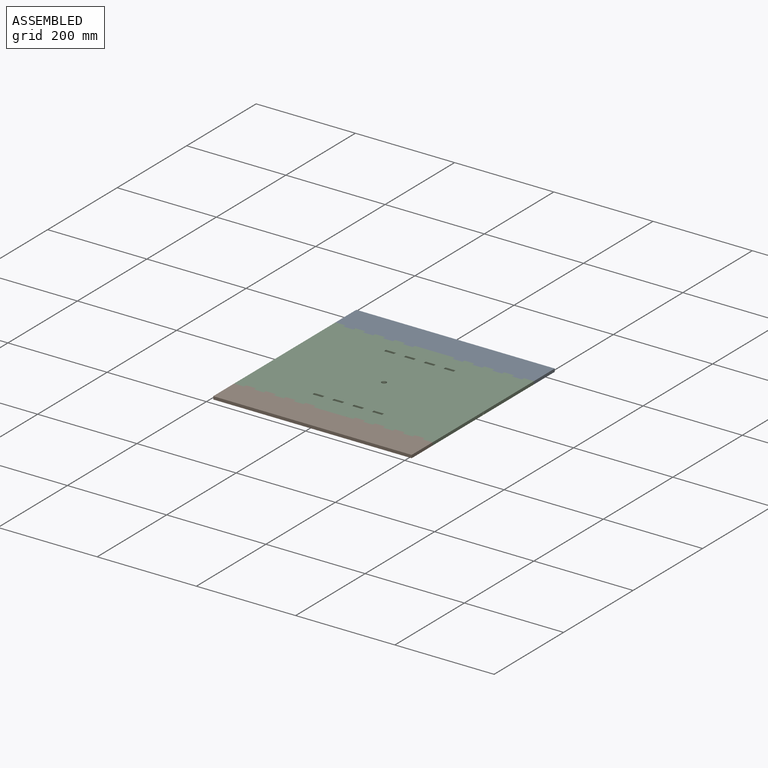
[diagram: assembled view]
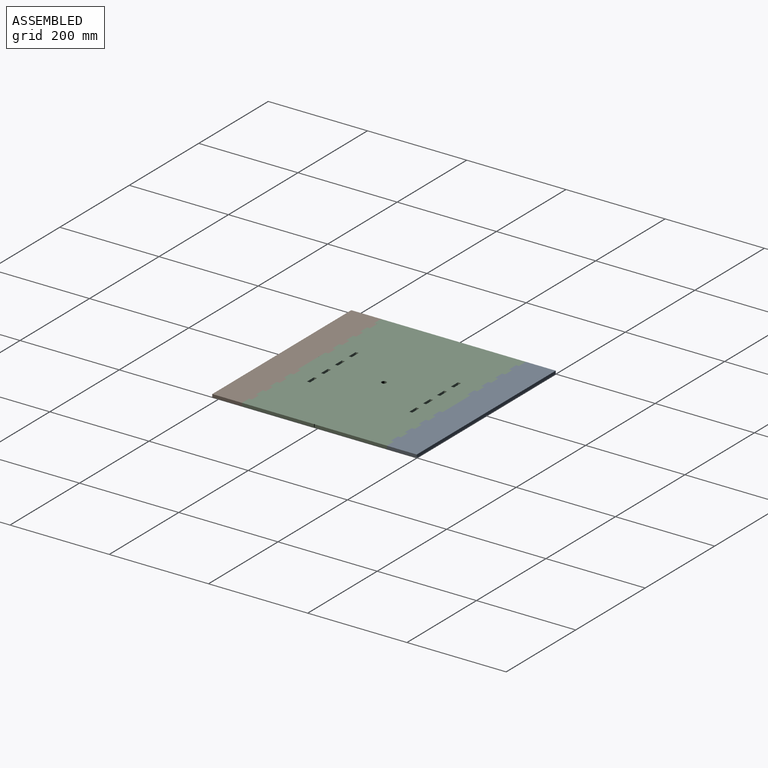
[diagram: assembled view, second angle]
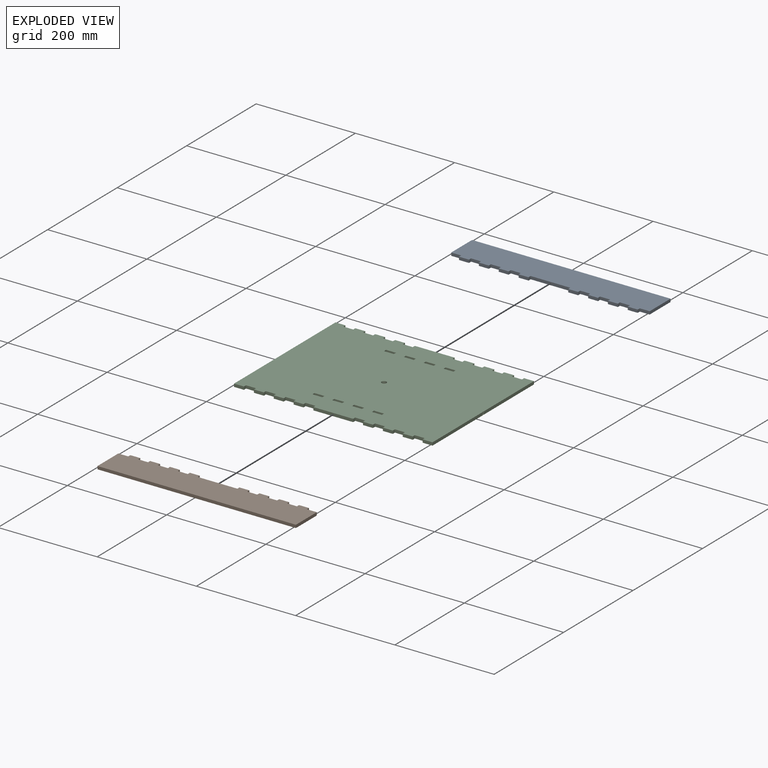
[diagram: exploded view]
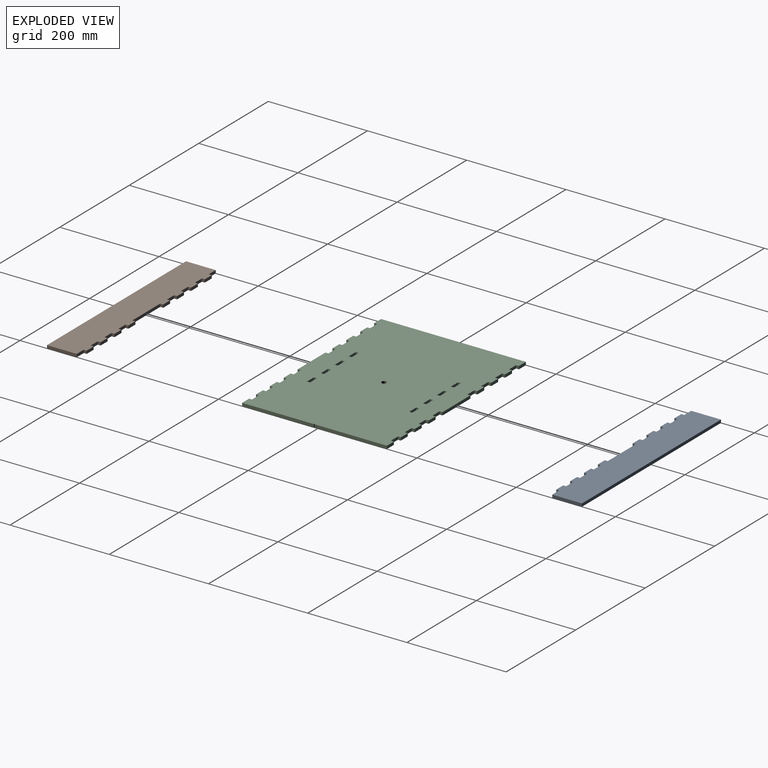
[diagram: exploded view, second angle]
ASSEMBLY  parts=3 mates=2
PART A: 38 faces, bbox 400x6x66 mm
  f0: plane 20x6mm, normal (0,0,1), area 120mm2, adj f1,f35,f36,f37
  f1: plane 6x6mm, normal (1,0,0), area 36mm2, adj f0,f2,f36,f37
  f2: plane 20x6mm, normal (0,0,1), area 120mm2, adj f1,f3,f36,f37
  f3: plane 6x6mm, normal (-1,0,0), area 36mm2, adj f2,f4,f36,f37
  f4: plane 20x6mm, normal (0,0,1), area 120mm2, adj f3,f5,f36,f37
  f5: plane 60x6mm, normal (-1,0,0), area 360mm2, adj f4,f6,f36,f37
  f6: plane 400x6mm, normal (0,0,-1), area 2400mm2, adj f5,f7,f36,f37
  f7: plane 60x6mm, normal (1,0,0), area 360mm2, adj f6,f8,f36,f37
  f8: plane 20x6mm, normal (0,0,1), area 120mm2, adj f7,f9,f36,f37
  f9: plane 6x6mm, normal (1,0,0), area 36mm2, adj f8,f10,f36,f37
  f10: plane 20x6mm, normal (0,0,1), area 120mm2, adj f9,f11,f36,f37
  f11: plane 6x6mm, normal (-1,0,0), area 36mm2, adj f10,f12,f36,f37
  f12: plane 20x6mm, normal (0,0,1), area 120mm2, adj f11,f13,f36,f37
  f13: plane 6x6mm, normal (1,0,0), area 36mm2, adj f12,f14,f36,f37
  f14: plane 20x6mm, normal (0,0,1), area 120mm2, adj f13,f15,f36,f37
  f15: plane 6x6mm, normal (-1,0,0), area 36mm2, adj f14,f16,f36,f37
  f16: plane 20x6mm, normal (0,0,1), area 120mm2, adj f15,f17,f36,f37
  f17: plane 6x6mm, normal (1,0,0), area 36mm2, adj f16,f18,f36,f37
  f18: plane 20x6mm, normal (0,0,1), area 120mm2, adj f17,f19,f36,f37
  f19: plane 6x6mm, normal (-1,0,0), area 36mm2, adj f18,f20,f36,f37
  f20: plane 20x6mm, normal (0,0,1), area 120mm2, adj f19,f21,f36,f37
  f21: plane 6x6mm, normal (1,0,0), area 36mm2, adj f20,f22,f36,f37
  f22: plane 20x6mm, normal (0,0,1), area 120mm2, adj f21,f23,f36,f37
  f23: plane 6x6mm, normal (-1,0,0), area 36mm2, adj f22,f24,f36,f37
  f24: plane 80x6mm, normal (0,0,1), area 480mm2, adj f23,f25,f36,f37
  f25: plane 6x6mm, normal (1,0,0), area 36mm2, adj f24,f26,f36,f37
  f26: plane 20x6mm, normal (0,0,1), area 120mm2, adj f25,f27,f36,f37
  f27: plane 6x6mm, normal (-1,0,0), area 36mm2, adj f26,f28,f36,f37
  f28: plane 20x6mm, normal (0,0,1), area 120mm2, adj f27,f29,f36,f37
  f29: plane 6x6mm, normal (1,0,0), area 36mm2, adj f28,f30,f36,f37
  f30: plane 20x6mm, normal (0,0,1), area 120mm2, adj f29,f31,f36,f37
  f31: plane 6x6mm, normal (-1,0,0), area 36mm2, adj f30,f32,f36,f37
  f32: plane 20x6mm, normal (0,0,1), area 120mm2, adj f31,f33,f36,f37
  f33: plane 6x6mm, normal (1,0,0), area 36mm2, adj f32,f34,f36,f37
  f34: plane 20x6mm, normal (0,0,1), area 120mm2, adj f33,f35,f36,f37
  f35: plane 6x6mm, normal (-1,0,0), area 36mm2, adj f0,f34,f36,f37
  f36: plane 400x66mm, normal (0,-1,0), area 24960mm2, adj f0,f1,f2,f3,f4,f5,f6,f7
  f37: plane 400x66mm, normal (0,1,0), area 24960mm2, adj f0,f1,f2,f3,f4,f5,f6,f7
PART B: same geometry as A
PART C: 107 faces, bbox 400x292x6 mm
  f0: plane 20x6mm, normal (0,-1,0), area 120mm2, adj f1,f104,f105,f106
  f1: plane 6x6mm, normal (-1,0,0), area 36mm2, adj f0,f2,f105,f106
  f2: plane 20x6mm, normal (0,-1,0), area 120mm2, adj f1,f3,f105,f106
  f3: plane 6x6mm, normal (1,0,0), area 36mm2, adj f2,f4,f105,f106
  f4: plane 20x6mm, normal (0,-1,0), area 120mm2, adj f3,f5,f105,f106
  f5: plane 6x6mm, normal (-1,0,0), area 36mm2, adj f4,f6,f105,f106
  f6: plane 20x6mm, normal (0,-1,0), area 120mm2, adj f5,f7,f105,f106
  f7: plane 6x6mm, normal (1,0,0), area 36mm2, adj f6,f8,f105,f106
  f8: plane 20x6mm, normal (0,-1,0), area 120mm2, adj f7,f9,f105,f106
  f9: plane 6x6mm, normal (-1,0,0), area 36mm2, adj f8,f10,f105,f106
  f10: plane 20x6mm, normal (0,-1,0), area 120mm2, adj f9,f11,f105,f106
  f11: plane 6x6mm, normal (1,0,0), area 36mm2, adj f10,f12,f105,f106
  f12: plane 20x6mm, normal (0,-1,0), area 120mm2, adj f11,f13,f105,f106
  f13: plane 6x6mm, normal (-1,0,0), area 36mm2, adj f12,f14,f105,f106
  f14: plane 80x6mm, normal (0,-1,0), area 480mm2, adj f13,f15,f105,f106
  f15: plane 6x6mm, normal (1,0,0), area 36mm2, adj f14,f16,f105,f106
  f16: plane 20x6mm, normal (0,-1,0), area 120mm2, adj f15,f17,f105,f106
  f17: plane 6x6mm, normal (-1,0,0), area 36mm2, adj f16,f18,f105,f106
  f18: plane 20x6mm, normal (0,-1,0), area 120mm2, adj f17,f19,f105,f106
  f19: plane 6x6mm, normal (1,0,0), area 36mm2, adj f18,f20,f105,f106
  f20: plane 20x6mm, normal (0,-1,0), area 120mm2, adj f19,f21,f105,f106
  f21: plane 6x6mm, normal (-1,0,0), area 36mm2, adj f20,f22,f105,f106
  f22: plane 20x6mm, normal (0,-1,0), area 120mm2, adj f21,f23,f105,f106
  f23: plane 6x6mm, normal (1,0,0), area 36mm2, adj f22,f24,f105,f106
  f24: plane 20x6mm, normal (0,-1,0), area 120mm2, adj f23,f25,f105,f106
  f25: plane 6x6mm, normal (-1,0,0), area 36mm2, adj f24,f26,f105,f106
  f26: plane 20x6mm, normal (0,-1,0), area 120mm2, adj f25,f27,f105,f106
  f27: plane 6x6mm, normal (1,0,0), area 36mm2, adj f26,f28,f105,f106
  f28: plane 20x6mm, normal (0,-1,0), area 120mm2, adj f27,f29,f105,f106
  f29: plane 6x6mm, normal (-1,0,0), area 36mm2, adj f28,f30,f105,f106
  f30: plane 20x6mm, normal (0,-1,0), area 120mm2, adj f29,f31,f105,f106
  f31: plane 145x6mm, normal (1,0,0), area 870mm2, adj f30,f32,f105,f106
  f32: cylinder r=1mm len=6mm, axis (0,0,-1), area 18.8mm2, adj f31,f33,f105,f106
  f33: plane 145x6mm, normal (1,0,0), area 870mm2, adj f32,f34,f105,f106
  f34: plane 20x6mm, normal (0,1,0), area 120mm2, adj f33,f35,f105,f106
  f35: plane 6x6mm, normal (-1,0,0), area 36mm2, adj f34,f36,f105,f106
  f36: plane 20x6mm, normal (0,1,0), area 120mm2, adj f35,f37,f105,f106
  f37: plane 6x6mm, normal (1,0,0), area 36mm2, adj f36,f38,f105,f106
  f38: plane 20x6mm, normal (0,1,0), area 120mm2, adj f37,f39,f105,f106
  f39: plane 6x6mm, normal (-1,0,0), area 36mm2, adj f38,f40,f105,f106
  f40: plane 20x6mm, normal (0,1,0), area 120mm2, adj f39,f41,f105,f106
  f41: plane 6x6mm, normal (1,0,0), area 36mm2, adj f40,f42,f105,f106
  f42: plane 20x6mm, normal (0,1,0), area 120mm2, adj f41,f43,f105,f106
  f43: plane 6x6mm, normal (-1,0,0), area 36mm2, adj f42,f44,f105,f106
  f44: plane 20x6mm, normal (0,1,0), area 120mm2, adj f43,f45,f105,f106
  f45: plane 6x6mm, normal (1,0,0), area 36mm2, adj f44,f46,f105,f106
  f46: plane 20x6mm, normal (0,1,0), area 120mm2, adj f45,f47,f105,f106
  f47: plane 6x6mm, normal (-1,0,0), area 36mm2, adj f46,f48,f105,f106
  f48: plane 20x6mm, normal (0,1,0), area 120mm2, adj f47,f49,f105,f106
  f49: plane 6x6mm, normal (1,0,0), area 36mm2, adj f48,f50,f105,f106
  f50: plane 80x6mm, normal (0,1,0), area 480mm2, adj f49,f51,f105,f106
  f51: plane 6x6mm, normal (-1,0,0), area 36mm2, adj f50,f52,f105,f106
  f52: plane 20x6mm, normal (0,1,0), area 120mm2, adj f51,f53,f105,f106
  f53: plane 6x6mm, normal (1,0,0), area 36mm2, adj f52,f54,f105,f106
  f54: plane 20x6mm, normal (0,1,0), area 120mm2, adj f53,f55,f105,f106
  f55: plane 6x6mm, normal (-1,0,0), area 36mm2, adj f54,f56,f105,f106
  f56: plane 20x6mm, normal (0,1,0), area 120mm2, adj f55,f57,f105,f106
  f57: plane 6x6mm, normal (1,0,0), area 36mm2, adj f56,f58,f105,f106
  f58: plane 20x6mm, normal (0,1,0), area 120mm2, adj f57,f59,f105,f106
  f59: plane 6x6mm, normal (-1,0,0), area 36mm2, adj f58,f60,f105,f106
  f60: plane 20x6mm, normal (0,1,0), area 120mm2, adj f59,f61,f105,f106
  f61: plane 6x6mm, normal (1,0,0), area 36mm2, adj f60,f62,f105,f106
  f62: plane 20x6mm, normal (0,1,0), area 120mm2, adj f61,f63,f105,f106
  f63: plane 6x6mm, normal (-1,0,0), area 36mm2, adj f62,f64,f105,f106
  f64: plane 20x6mm, normal (0,1,0), area 120mm2, adj f63,f65,f105,f106
  f65: plane 6x6mm, normal (1,0,0), area 36mm2, adj f64,f66,f105,f106
  f66: plane 20x6mm, normal (0,1,0), area 120mm2, adj f65,f67,f105,f106
  f67: plane 145.5x6mm, normal (-1,0,0), area 873mm2, adj f66,f68,f105,f106
  f68: cylinder r=0.5mm len=6mm, axis (0,0,-1), area 9.4mm2, adj f67,f69,f105,f106
  f69: plane 145.5x6mm, normal (-1,0,0), area 873mm2, adj f68,f70,f105,f106
  f70: plane 20x6mm, normal (0,-1,0), area 120mm2, adj f69,f104,f105,f106
  f71: plane 20x6mm, normal (0,-1,0), area 120mm2, adj f72,f95,f105,f106
  f72: plane 6x6mm, normal (-1,0,0), area 36mm2, adj f71,f73,f105,f106
  f73: plane 20x6mm, normal (0,1,0), area 120mm2, adj f72,f95,f105,f106
  f74: plane 20x6mm, normal (0,1,0), area 120mm2, adj f75,f96,f105,f106
  f75: plane 6x6mm, normal (1,0,0), area 36mm2, adj f74,f76,f105,f106
  f76: plane 20x6mm, normal (0,-1,0), area 120mm2, adj f75,f96,f105,f106
  f77: plane 20x6mm, normal (0,1,0), area 120mm2, adj f78,f97,f105,f106
  f78: plane 6x6mm, normal (1,0,0), area 36mm2, adj f77,f79,f105,f106
  f79: plane 20x6mm, normal (0,-1,0), area 120mm2, adj f78,f97,f105,f106
  f80: plane 20x6mm, normal (0,1,0), area 120mm2, adj f81,f98,f105,f106
  f81: plane 6x6mm, normal (1,0,0), area 36mm2, adj f80,f82,f105,f106
  f82: plane 20x6mm, normal (0,-1,0), area 120mm2, adj f81,f98,f105,f106
  f83: plane 6x6mm, normal (-1,0,0), area 36mm2, adj f84,f99,f105,f106
  f84: plane 20x6mm, normal (0,1,0), area 120mm2, adj f83,f85,f105,f106
  f85: plane 6x6mm, normal (1,0,0), area 36mm2, adj f84,f99,f105,f106
  f86: plane 6x6mm, normal (-1,0,0), area 36mm2, adj f87,f100,f105,f106
  f87: plane 20x6mm, normal (0,1,0), area 120mm2, adj f86,f88,f105,f106
  f88: plane 6x6mm, normal (1,0,0), area 36mm2, adj f87,f100,f105,f106
  f89: plane 6x6mm, normal (-1,0,0), area 36mm2, adj f90,f101,f105,f106
  f90: plane 20x6mm, normal (0,1,0), area 120mm2, adj f89,f91,f105,f106
  f91: plane 6x6mm, normal (1,0,0), area 36mm2, adj f90,f101,f105,f106
  f92: plane 6x6mm, normal (1,0,0), area 36mm2, adj f93,f102,f105,f106
  f93: plane 20x6mm, normal (0,-1,0), area 120mm2, adj f92,f94,f105,f106
  f94: plane 6x6mm, normal (-1,0,0), area 36mm2, adj f93,f102,f105,f106
  f95: plane 6x6mm, normal (1,0,0), area 36mm2, adj f71,f73,f105,f106
  f96: plane 6x6mm, normal (-1,0,0), area 36mm2, adj f74,f76,f105,f106
  f97: plane 6x6mm, normal (-1,0,0), area 36mm2, adj f77,f79,f105,f106
  f98: plane 6x6mm, normal (-1,0,0), area 36mm2, adj f80,f82,f105,f106
  f99: plane 20x6mm, normal (0,-1,0), area 120mm2, adj f83,f85,f105,f106
  f100: plane 20x6mm, normal (0,-1,0), area 120mm2, adj f86,f88,f105,f106
  f101: plane 20x6mm, normal (0,-1,0), area 120mm2, adj f89,f91,f105,f106
  f102: plane 20x6mm, normal (0,1,0), area 120mm2, adj f92,f94,f105,f106
  f103: cylinder r=5mm len=10mm, axis (0,0,-1), area 188.5mm2, adj f105,f106
  f104: plane 6x6mm, normal (1,0,0), area 36mm2, adj f0,f70,f105,f106
  f105: plane 400x292mm, normal (0,0,1), area 113839.5mm2, adj f0,f1,f2,f3,f4,f5,f6,f7
  f106: plane 400x292mm, normal (0,0,-1), area 113839.5mm2, adj f0,f1,f2,f3,f4,f5,f6,f7
PLACE A rot(axis=(1,0,0),90deg) t=(15.06,150.16,143.45)mm
PLACE B rot(axis=(-1,0,0),90deg) t=(15.06,-141.84,-142.55)mm
PLACE C t=(15.06,4.16,-2.55)mm fixed
MATE fastened B.f24 <-> C.f14  axis (0,1,0) through (15.06,-141.84,0.45)mm
MATE fastened C.f50 <-> A.f24  axis (0,1,0) through (15.06,150.16,0.45)mm
